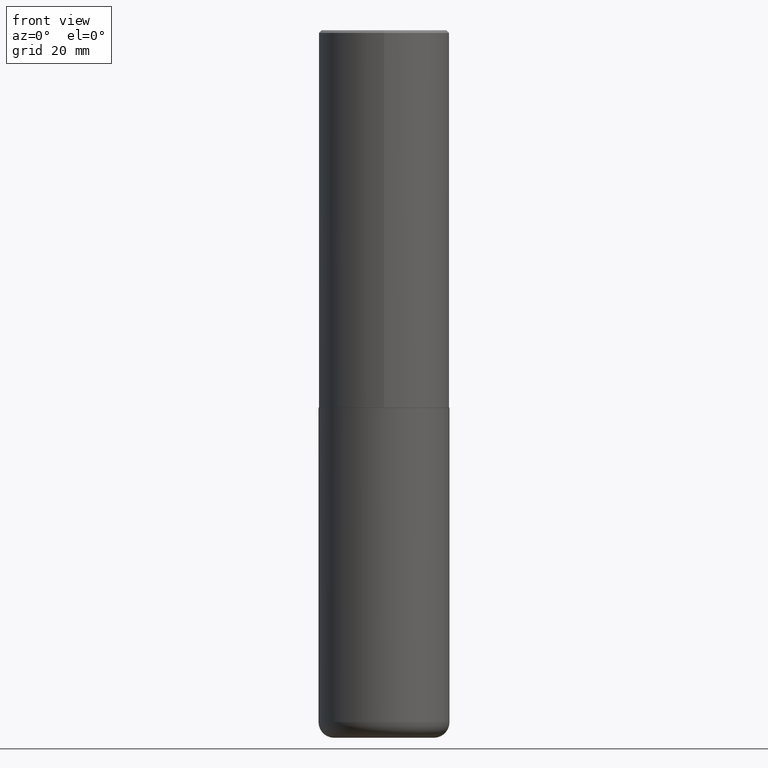
[diagram: clean part render]
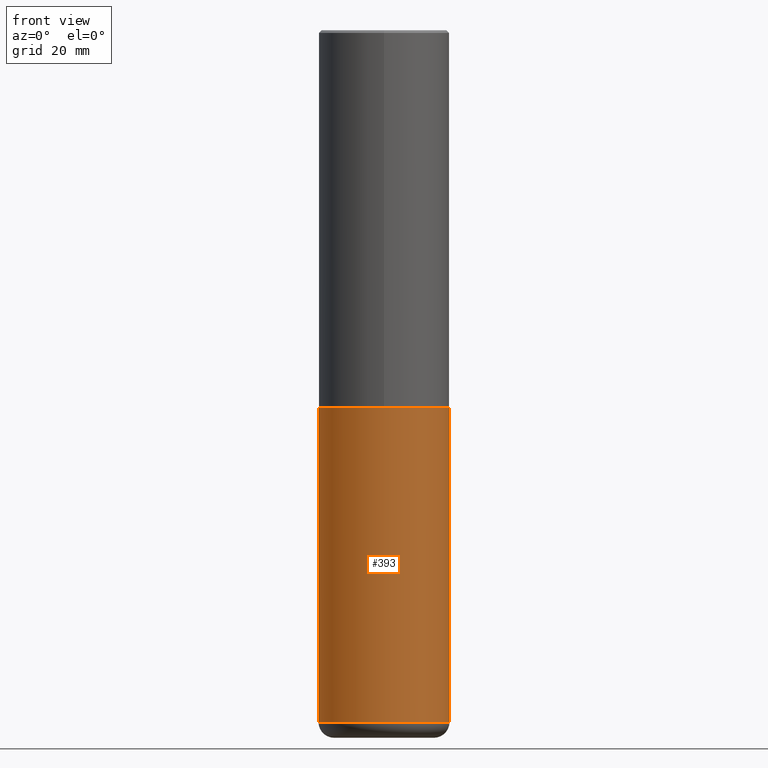
[diagram: same view with one face highlighted and labeled with its STEP entity id]
A machine part, front view. The second image highlights one B-rep face of the part: STEP entity #393.
In plain terms, the highlighted cylindrical surface (partial cylindrical patch) has radius 12.5006 mm, axis along (-0, 0, 1).
Its self-contained STEP definition (entity closure, byte-faithful):
#14 = CARTESIAN_POINT ( 'NONE',  ( 0.000000000000000000, 0.000000000000000000, 0.000000000000000000 ) ) ;
#30 = EDGE_LOOP ( 'NONE', ( #369, #360, #304, #394 ) ) ;
#34 = VERTEX_POINT ( 'NONE', #179 ) ;
#65 = VERTEX_POINT ( 'NONE', #374 ) ;
#74 = DIRECTION ( 'NONE',  ( 1.000000000000000000, -6.982962677686265922E-15, 4.876176775795935793E-29 ) ) ;
#75 = AXIS2_PLACEMENT_3D ( 'NONE', #346, #186, #87 ) ;
#78 = CARTESIAN_POINT ( 'NONE',  ( 0.4921499999999999764, -2.158154445165724138E-14, -5.196900000000000297 ) ) ;
#80 = CARTESIAN_POINT ( 'NONE',  ( -0.4921499999999999764, 3.496936074043332897E-15, -2.420853904668951509E-29 ) ) ;
#87 = DIRECTION ( 'NONE',  ( 1.000000000000000000, -6.982962677686265922E-15, 0.000000000000000000 ) ) ;
#103 = EDGE_CURVE ( 'NONE', #292, #327, #174, .T. ) ;
#109 = DIRECTION ( 'NONE',  ( -2.445468806185136597E-29, 3.491481338843145583E-15, 1.000000000000000000 ) ) ;
#118 = AXIS2_PLACEMENT_3D ( 'NONE', #243, #384, #381 ) ;
#124 = EDGE_CURVE ( 'NONE', #34, #65, #150, .T. ) ;
#135 = LINE ( 'NONE', #273, #282 ) ;
#136 = CARTESIAN_POINT ( 'NONE',  ( -0.4921499999999999764, -1.464794329579061349E-14, -5.196900000000000297 ) ) ;
#150 = CIRCLE ( 'NONE', #75, 0.4921499999999999764 ) ;
#165 = DIRECTION ( 'NONE',  ( -2.445468806185136877E-29, 3.491481338843145188E-15, 1.000000000000000000 ) ) ;
#174 = CIRCLE ( 'NONE', #118, 0.4921499999999999764 ) ;
#179 = CARTESIAN_POINT ( 'NONE',  ( -0.4921499999999999764, -1.052415468648297289E-14, -2.834700000000000220 ) ) ;
#186 = DIRECTION ( 'NONE',  ( -2.445468806185136597E-29, 3.491481338843145583E-15, 1.000000000000000000 ) ) ;
#190 = FACE_OUTER_BOUND ( 'NONE', #30, .T. ) ;
#234 = EDGE_CURVE ( 'NONE', #292, #34, #320, .T. ) ;
#243 = CARTESIAN_POINT ( 'NONE',  ( 1.270885683886353718E-28, -1.814487936983394718E-14, -5.196900000000000297 ) ) ;
#273 = CARTESIAN_POINT ( 'NONE',  ( 0.4921499999999999764, -3.436665081823295777E-15, 2.399810400207969603E-29 ) ) ;
#282 = VECTOR ( 'NONE', #165, 39.37007874015748143 ) ;
#292 = VERTEX_POINT ( 'NONE', #136 ) ;
#304 = ORIENTED_EDGE ( 'NONE', *, *, #380, .T. ) ;
#306 = VECTOR ( 'NONE', #314, 39.37007874015748143 ) ;
#314 = DIRECTION ( 'NONE',  ( -2.445468806185136877E-29, 3.491481338843145188E-15, 1.000000000000000000 ) ) ;
#320 = LINE ( 'NONE', #80, #306 ) ;
#327 = VERTEX_POINT ( 'NONE', #78 ) ;
#336 = CYLINDRICAL_SURFACE ( 'NONE', #340, 0.4921499999999999764 ) ;
#340 = AXIS2_PLACEMENT_3D ( 'NONE', #14, #109, #74 ) ;
#346 = CARTESIAN_POINT ( 'NONE',  ( 6.932170424893007423E-29, -9.897302151218665974E-15, -2.834700000000000220 ) ) ;
#360 = ORIENTED_EDGE ( 'NONE', *, *, #103, .T. ) ;
#369 = ORIENTED_EDGE ( 'NONE', *, *, #234, .F. ) ;
#374 = CARTESIAN_POINT ( 'NONE',  ( 0.4921499999999999764, -1.333396723304196175E-14, -2.834700000000000220 ) ) ;
#380 = EDGE_CURVE ( 'NONE', #327, #65, #135, .T. ) ;
#381 = DIRECTION ( 'NONE',  ( 1.000000000000000000, -6.982962677686265922E-15, 0.000000000000000000 ) ) ;
#384 = DIRECTION ( 'NONE',  ( -2.445468806185136597E-29, 3.491481338843145583E-15, 1.000000000000000000 ) ) ;
#393 = ADVANCED_FACE ( 'NONE', ( #190 ), #336, .T. ) ;
#394 = ORIENTED_EDGE ( 'NONE', *, *, #124, .F. ) ;